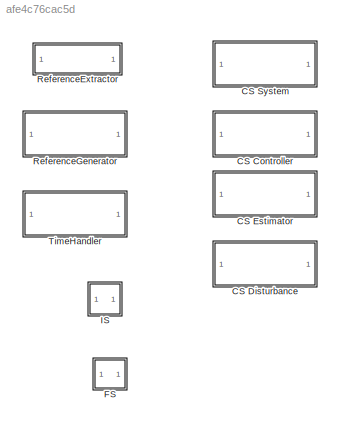
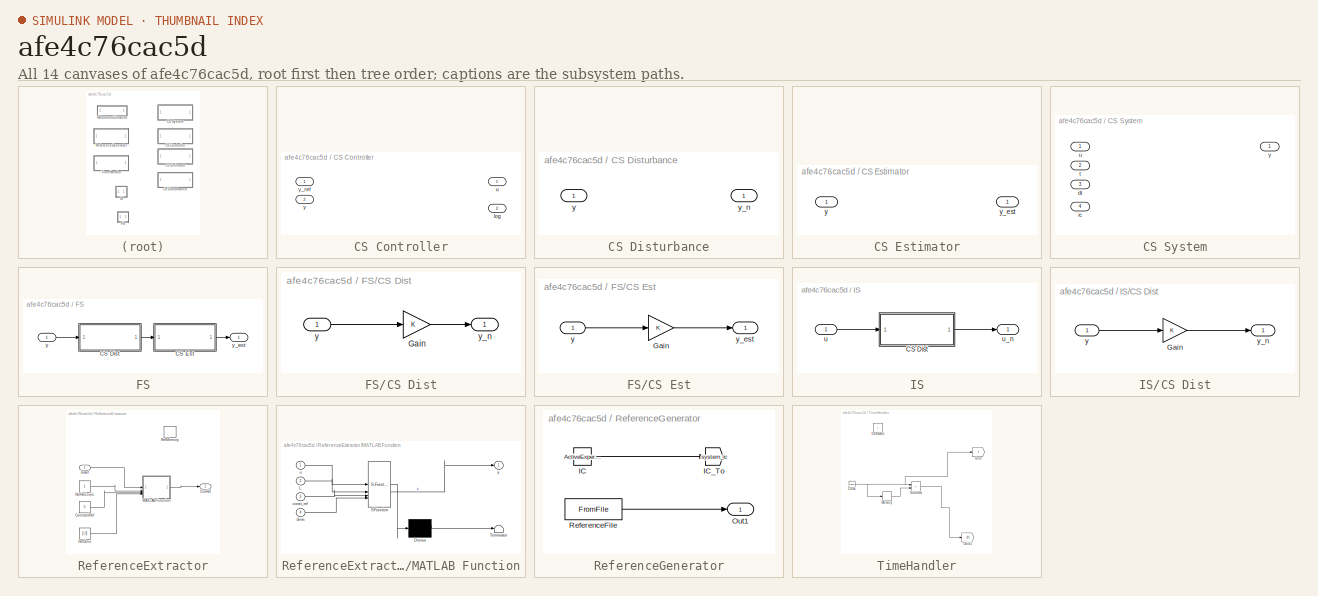
[diagram: thumbnail index - all 14 canvases of the model, root first then tree order]
MODEL slx_afe4c76cac5d
KIND model
CONFIG AbsTol = auto
CONFIG EnableMultiTasking = off
CONFIG FixedStep = auto
CONFIG MaxStep = auto
CONFIG MinStep = auto
CONFIG RelTol = 1e-3
CONFIG SampleTimeConstraint = Unconstrained
CONFIG SolverName = VariableStepAuto
CONFIG StartTime = 0.0
CONFIG StopTime = 10.0
BLOCK [SubSystem] CS Controller
  Tag = __cs_template;__cs_comptype:ctl
BLOCK [Outport] CS Controller/log
  Port = 2
BLOCK [Outport] CS Controller/u
BLOCK [Inport] CS Controller/y
  Port = 2
BLOCK [Inport] CS Controller/y_ref
BLOCK [SubSystem] CS Disturbance
  Tag = __cs_template;__cs_comptype:dist
BLOCK [Inport] CS Disturbance/y
BLOCK [Outport] CS Disturbance/y_n
BLOCK [SubSystem] CS Estimator
  Tag = __cs_template;__cs_comptype:est
BLOCK [Inport] CS Estimator/y
BLOCK [Outport] CS Estimator/y_est
BLOCK [SubSystem] CS System
  Tag = __cs_template;__cs_comptype:sys
BLOCK [Inport] CS System/dt
  Port = 3
BLOCK [Inport] CS System/ic
  Port = 4
BLOCK [Inport] CS System/t
  Port = 2
BLOCK [Inport] CS System/u
BLOCK [Outport] CS System/y
BLOCK [SubSystem] FS
  NameLocation = top
BLOCK [SubSystem] FS/CS Dist
BLOCK [Gain] FS/CS Dist/Gain
BLOCK [Inport] FS/CS Dist/y
BLOCK [Outport] FS/CS Dist/y_n
BLOCK [SubSystem] FS/CS Est
BLOCK [Gain] FS/CS Est/Gain
BLOCK [Inport] FS/CS Est/y
BLOCK [Outport] FS/CS Est/y_est
BLOCK [Inport] FS/y
BLOCK [Outport] FS/y_est
BLOCK [SubSystem] IS
BLOCK [SubSystem] IS/CS Dist
BLOCK [Gain] IS/CS Dist/Gain
BLOCK [Inport] IS/CS Dist/y
BLOCK [Outport] IS/CS Dist/y_n
BLOCK [Inport] IS/u
BLOCK [Outport] IS/u_n
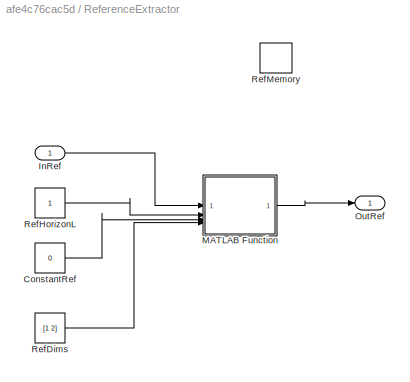
BLOCK [SubSystem] ReferenceExtractor
BLOCK [Constant] ReferenceExtractor/ConstantRef
  Value = 0
BLOCK [Inport] ReferenceExtractor/InRef
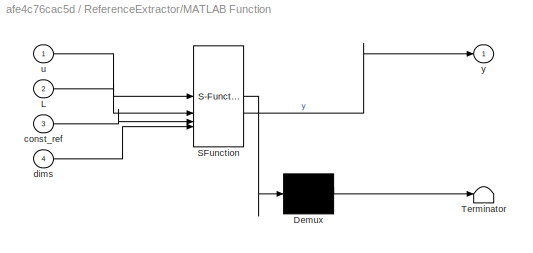
BLOCK [SubSystem] ReferenceExtractor/MATLAB Function
  ErrorFcn = Stateflow.Translate.translate
  PermitHierarchicalResolution = ExplicitOnly
  SFBlockType = MATLAB Function
  TreatAsAtomicUnit = on
BLOCK [Demux] ReferenceExtractor/MATLAB Function/ Demux 
  Outputs = 1
BLOCK [S-Function] ReferenceExtractor/MATLAB Function/ SFunction 
  EnableBusSupport = off
  FunctionName = sf_sfun
  Parameters = GlobalReference
  PortCounts = [4 2]
  SFcnIsStateOwnerBlock = off
  SFunctionDeploymentMode = off
  Tag = Stateflow S-Function 7
BLOCK [Terminator] ReferenceExtractor/MATLAB Function/ Terminator 
BLOCK [Inport] ReferenceExtractor/MATLAB Function/L
  Port = 2
BLOCK [Inport] ReferenceExtractor/MATLAB Function/const_ref
  Port = 3
BLOCK [Inport] ReferenceExtractor/MATLAB Function/dims
  Port = 4
BLOCK [Inport] ReferenceExtractor/MATLAB Function/u
BLOCK [Outport] ReferenceExtractor/MATLAB Function/y
BLOCK [Outport] ReferenceExtractor/OutRef
BLOCK [Constant] ReferenceExtractor/RefDims
  Value = [1 2]
BLOCK [Constant] ReferenceExtractor/RefHorizonL
BLOCK [DataStoreMemory] ReferenceExtractor/RefMemory
  DataStoreName = ref
  OutDataTypeStr = double
  ShowAdditionalParam = off
  SignalType = real
  WriteAfterWriteMsg = warning
BLOCK [SubSystem] ReferenceGenerator
  OpenFcn = on_reference_generator_open();
BLOCK [Constant] ReferenceGenerator/IC
  Value = ActiveExperiment.SystemIc
BLOCK [Goto] ReferenceGenerator/IC_To
  GotoTag = system_ic
  TagVisibility = global
BLOCK [Outport] ReferenceGenerator/Out1
BLOCK [FromFile] ReferenceGenerator/ReferenceFile
  SampleTime = 0
BLOCK [SubSystem] TimeHandler
BLOCK [Clock] TimeHandler/Clock
BLOCK [Constant] TimeHandler/Constant
BLOCK [Goto] TimeHandler/Goto
  GotoTag = t
  TagVisibility = global
BLOCK [Goto] TimeHandler/Goto1
  GotoTag = dt
  TagVisibility = global
BLOCK [Memory] TimeHandler/Memory
BLOCK [Sum] TimeHandler/Subtract
  IconShape = rectangular
  Inputs = +-
LINE FS/CS Dist/Gain:1 -> FS/CS Dist/y_n:1
LINE FS/CS Dist/y:1 -> FS/CS Dist/Gain:1
LINE FS/CS Dist:1 -> FS/CS Est:1
LINE FS/CS Est/Gain:1 -> FS/CS Est/y_est:1
LINE FS/CS Est/y:1 -> FS/CS Est/Gain:1
LINE FS/CS Est:1 -> FS/y_est:1
LINE FS/y:1 -> FS/CS Dist:1
LINE IS/CS Dist/Gain:1 -> IS/CS Dist/y_n:1
LINE IS/CS Dist/y:1 -> IS/CS Dist/Gain:1
LINE IS/CS Dist:1 -> IS/u_n:1
LINE IS/u:1 -> IS/CS Dist:1
LINE ReferenceExtractor/ConstantRef:1 -> ReferenceExtractor/MATLAB Function:3
LINE ReferenceExtractor/InRef:1 -> ReferenceExtractor/MATLAB Function:1
LINE ReferenceExtractor/MATLAB Function:1 -> ReferenceExtractor/OutRef:1
LINE ReferenceExtractor/RefDims:1 -> ReferenceExtractor/MATLAB Function:4
LINE ReferenceExtractor/RefHorizonL:1 -> ReferenceExtractor/MATLAB Function:2
LINE ReferenceGenerator/IC:1 -> ReferenceGenerator/IC_To:1
LINE ReferenceGenerator/ReferenceFile:1 -> ReferenceGenerator/Out1:1
NET TimeHandler/Clock:1 -> TimeHandler/Goto:1, TimeHandler/Memory:1, TimeHandler/Subtract:1
LINE TimeHandler/Memory:1 -> TimeHandler/Subtract:2
LINE TimeHandler/Subtract:1 -> TimeHandler/Goto1:1
note: NET lines group one-source signal fan-out (src -> all destinations, sorted); 1:1 wires keep LINE
CHART ReferenceExtractor/MATLAB Function states=1 transitions=1
  STATE_LABEL 'eML_blk_kernel()'
  STATE_LABEL "SCRIPT:\nfunction y = fcn(u, L, const_ref, dims, GlobalReference)\n\npersistent cnt\nglobal ref\n\nif isempty(cnt)\n    cnt = 0;\nend\n\nif GlobalReference == 0\n    y = repmat(u', 1);\n    return;\nend\n\n\ncnt = cnt+1;\n\nhorizon_end = cnt+L-1;\nif L > 1 \n   if horizon_end > length(GlobalReference)\n        if size(ref, 1) == size(u, 1)\n            y = permute(ref, [2, 1]);\n        else\n            y = ref;\n       ...<+621ch>"
CHART  states=0 transitions=0
